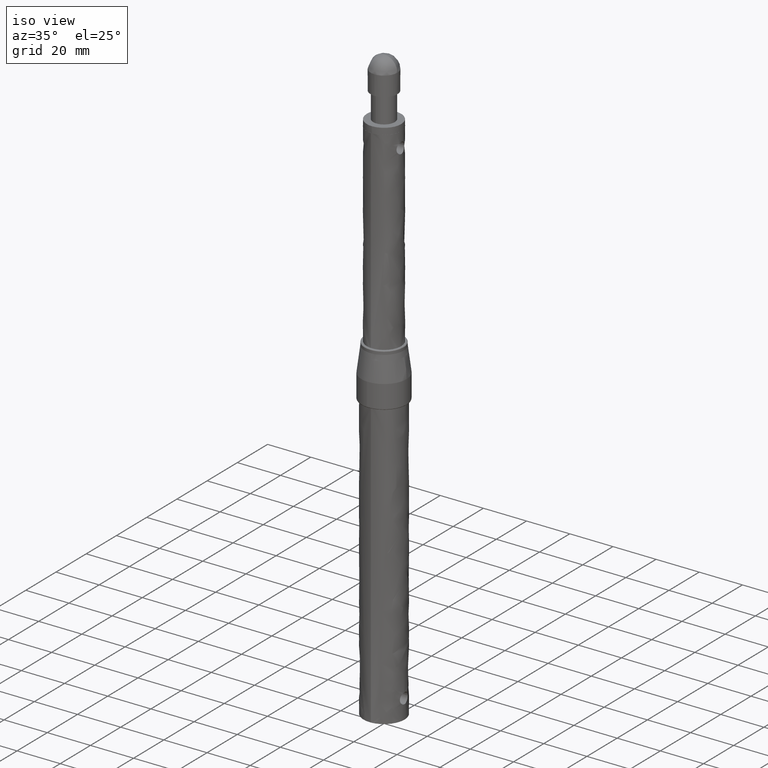
[diagram: clean part render]
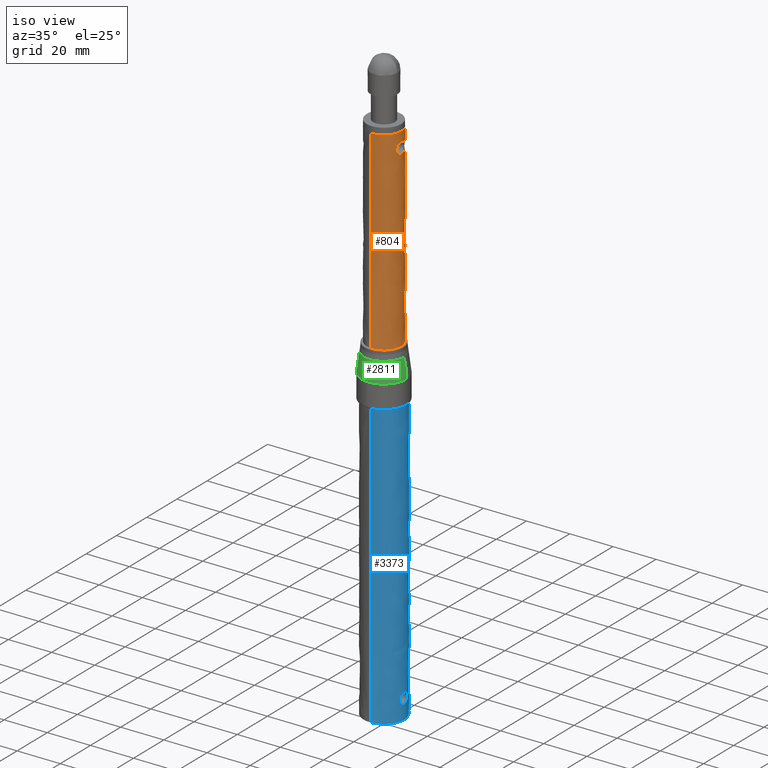
[diagram: same view with three faces highlighted in distinct colors, each labeled with its STEP entity id]
A machine part, iso view with three faces highlighted in distinct colors.
Their STEP definitions:

[orange] entity #804 — the highlighted face is a freeform B-spline surface patch.
#303=CARTESIAN_POINT('',(7.582743249678730,2.549902925123794,83.022252665729440));
#304=VERTEX_POINT('',#303);
#310=CARTESIAN_POINT('',(7.999999934522245,-0.001055043696518,85.549999816570917));
#311=VERTEX_POINT('',#310);
#312=CARTESIAN_POINT('',(7.999999934522245,-0.001055043696518,85.549999816570917));
#313=CARTESIAN_POINT('',(8.000010952038002,0.082517637098927,85.550034359334703));
#314=CARTESIAN_POINT('',(7.998712709724551,0.166042759770597,85.545970462006863));
#315=CARTESIAN_POINT('',(7.994805335043055,0.291258402058047,85.533658913579785));
#316=CARTESIAN_POINT('',(7.993176149045538,0.332984922772112,85.528517258053824));
#317=CARTESIAN_POINT('',(7.989264275730155,0.416413544957251,85.516123653966019));
#318=CARTESIAN_POINT('',(7.986973528548191,0.458227326937259,85.508845904355695));
#319=CARTESIAN_POINT('',(7.974029519826645,0.665092554143251,85.467515511903699));
#320=CARTESIAN_POINT('',(7.958898059747202,0.824598162930261,85.418735996890064));
#321=CARTESIAN_POINT('',(7.930465412959584,1.055330961396417,85.322867417715472));
#322=CARTESIAN_POINT('',(7.920029931422501,1.130810614202328,85.287098989553556));
#323=CARTESIAN_POINT('',(7.897475906497143,1.278859281521783,85.207730365571180));
#324=CARTESIAN_POINT('',(7.885512301647038,1.350407125545224,85.164666643479833));
#325=CARTESIAN_POINT('',(7.848241082284670,1.557153371534126,85.026153438975669));
#326=CARTESIAN_POINT('',(7.821490513945916,1.684900333300609,84.921280572632895));
#327=CARTESIAN_POINT('',(7.780646291718522,1.861503155467159,84.744773054397598));
#328=CARTESIAN_POINT('',(7.766895559549761,1.917886269627127,84.682587730010781));
#329=CARTESIAN_POINT('',(7.740118232673827,2.023245935113066,84.554305340658843));
#330=CARTESIAN_POINT('',(7.713919556764893,2.121851401662508,84.421509869114772));
#331=CARTESIAN_POINT('',(7.689600826030982,2.207196649373006,84.279721566513501));
#332=CARTESIAN_POINT('',(7.672346302740444,2.266168933595619,84.169916405131872));
#333=CARTESIAN_POINT('',(7.666759016370793,2.284985297102654,84.132736278940683));
#334=CARTESIAN_POINT('',(7.655961938518892,2.320904654598196,84.057190080632807));
#335=CARTESIAN_POINT('',(7.650738146777171,2.338052837103082,84.018711793290322));
#336=CARTESIAN_POINT('',(7.625883883182427,2.418772475540874,83.824789330311091));
#337=CARTESIAN_POINT('',(7.610104256425783,2.467287494779346,83.665442168910459));
#338=CARTESIAN_POINT('',(7.593903004731261,2.516532470065900,83.420142198350248));
#339=CARTESIAN_POINT('',(7.589746524700951,2.528996970933513,83.337321981499997));
#340=CARTESIAN_POINT('',(7.585542344708788,2.541567774949011,83.211450031586239));
#341=CARTESIAN_POINT('',(7.584478001023777,2.544739332833061,83.169087058215183));
#342=CARTESIAN_POINT('',(7.583187044986538,2.548583430765024,83.091903810009001));
#343=CARTESIAN_POINT('',(7.582845339994935,2.549599447837199,83.057040079309715));
#344=CARTESIAN_POINT('',(7.582743249678730,2.549902925123794,83.022252665729440));
#345=B_SPLINE_CURVE_WITH_KNOTS('',3,(#312,#313,#314,#315,#316,#317,#318,#319,#320,#321,#322,#323,#324,#325,#326,#327,#328,#329,#330,#331,#332,#333,#334,#335,#336,#337,#338,#339,#340,#341,#342,#343,#344),.UNSPECIFIED.,.F.,.U.,(4,2,2,2,2,2,2,2,2,1,2,2,2,2,2,2,4),(0.500000000000002,0.515625000000002,0.523437500000002,0.531250000000002,0.562500000000002,0.578125000000002,0.593750000000003,0.625000000000003,0.640625000000002,0.656250000000001,0.671875000000000,0.679687500000000,0.687499999999999,0.718750000000000,0.734375000000000,0.742187499999999,0.748649761719194),.UNSPECIFIED.);
#346=EDGE_CURVE('',#311,#304,#345,.T.);
#348=CARTESIAN_POINT('',(7.582743273882599,-2.549903271921090,82.977747331442941));
#349=VERTEX_POINT('',#348);
#350=CARTESIAN_POINT('',(7.582743273882599,-2.549903271921090,82.977747331442941));
#351=CARTESIAN_POINT('',(7.582723207792069,-2.549962426581072,82.984579588867476));
#352=CARTESIAN_POINT('',(7.582712375925069,-2.549994343406730,82.991414103898123));
#353=CARTESIAN_POINT('',(7.582691475064893,-2.550056500924531,83.082022266557274));
#354=CARTESIAN_POINT('',(7.584065721039796,-2.545981614834650,83.166287712179283));
#355=CARTESIAN_POINT('',(7.589634448736089,-2.529332769238430,83.334887755170243));
#356=CARTESIAN_POINT('',(7.593782910547509,-2.516894390202759,83.418011043335142));
#357=CARTESIAN_POINT('',(7.609968451614170,-2.467705494442669,83.664000893987904));
#358=CARTESIAN_POINT('',(7.625747884815830,-2.419196979983068,83.823517197080534));
#359=CARTESIAN_POINT('',(7.650556020018452,-2.338648204558807,84.017342386278614));
#360=CARTESIAN_POINT('',(7.655777571928951,-2.321512440834910,84.055855690859715));
#361=CARTESIAN_POINT('',(7.666574809994707,-2.285602980191551,84.131490312160551));
#362=CARTESIAN_POINT('',(7.672163319773297,-2.266788127990958,84.168717329256282));
#363=CARTESIAN_POINT('',(7.689424990931371,-2.207809015801834,84.278670182937375));
#364=CARTESIAN_POINT('',(7.713762561799149,-2.122424447744433,84.420674098240909));
#365=CARTESIAN_POINT('',(7.739998287433006,-2.023706728003619,84.553712955843807));
#366=CARTESIAN_POINT('',(7.766820974858214,-1.918190414326868,84.682248053994698));
#367=CARTESIAN_POINT('',(7.780579245883319,-1.861779191357675,84.744471042657068));
#368=CARTESIAN_POINT('',(7.821349094829246,-1.685538864319326,84.920693862653508));
#369=CARTESIAN_POINT('',(7.848073017754018,-1.557989784950259,85.025502956393737));
#370=CARTESIAN_POINT('',(7.885338794393769,-1.351416828207113,85.164034643751961));
#371=CARTESIAN_POINT('',(7.897310136922620,-1.279880175792994,85.207137707024344));
#372=CARTESIAN_POINT('',(7.919872316087323,-1.131911317803977,85.286553511653750));
#373=CARTESIAN_POINT('',(7.930307156051634,-1.056510570670662,85.322327056937198));
#374=CARTESIAN_POINT('',(7.958733146586886,-0.826142883484135,85.418193285650801));
#375=CARTESIAN_POINT('',(7.973852998475244,-0.667049811053179,85.466945638462022));
#376=CARTESIAN_POINT('',(7.989407147673704,-0.419756110686170,85.516619529765691));
#377=CARTESIAN_POINT('',(7.993396647904969,-0.335585155914548,85.529219646131082));
#378=CARTESIAN_POINT('',(7.998668639660973,-0.168247951970126,85.545832291050786));
#379=CARTESIAN_POINT('',(7.999988917006217,-0.084627718935503,85.549965273855236));
#380=CARTESIAN_POINT('',(7.999999934522245,-0.001055043696518,85.549999816570917));
#381=B_SPLINE_CURVE_WITH_KNOTS('',3,(#350,#351,#352,#353,#354,#355,#356,#357,#358,#359,#360,#361,#362,#363,#364,#365,#366,#367,#368,#369,#370,#371,#372,#373,#374,#375,#376,#377,#378,#379,#380),.UNSPECIFIED.,.F.,.U.,(4,2,2,2,2,2,2,1,2,2,2,2,2,2,2,4),(0.248724808469254,0.250000000000014,0.265625000000014,0.281250000000014,0.312500000000011,0.320312500000010,0.328125000000010,0.343750000000008,0.359375000000007,0.375000000000006,0.406250000000003,0.421875000000002,0.437500000000002,0.468750000000001,0.484375000000002,0.500000000000002),.UNSPECIFIED.);
#382=EDGE_CURVE('',#349,#311,#381,.T.);
#523=CARTESIAN_POINT('',(8.0,-6.518766E-015,80.449999999999989));
#524=VERTEX_POINT('',#523);
#525=CARTESIAN_POINT('',(8.0,-6.518766E-015,80.449999999999989));
#526=CARTESIAN_POINT('',(7.999999999999549,-0.169655814709794,80.450000000105533));
#527=CARTESIAN_POINT('',(7.994612872236966,-0.336263814360512,80.466760672836628));
#528=CARTESIAN_POINT('',(7.979234934039086,-0.581839238726868,80.515863981417382));
#529=CARTESIAN_POINT('',(7.972890952067285,-0.662969796930014,80.536256086681888));
#530=CARTESIAN_POINT('',(7.961637202545218,-0.783557746179390,80.573005371447920));
#531=CARTESIAN_POINT('',(7.957583427987512,-0.823681288998144,80.586326797888290));
#532=CARTESIAN_POINT('',(7.948991397365964,-0.902840306326149,80.614806391857300));
#533=CARTESIAN_POINT('',(7.944453565355747,-0.941894677355417,80.629962553647204));
#534=CARTESIAN_POINT('',(7.920656266689726,-1.134607900184878,80.710227857634436));
#535=CARTESIAN_POINT('',(7.898076484727111,-1.280664672004357,80.788653277325594));
#536=CARTESIAN_POINT('',(7.866948710448547,-1.453392493039597,80.904319109753231));
#537=CARTESIAN_POINT('',(7.860577932752981,-1.487441332038667,80.928342521439504));
#538=CARTESIAN_POINT('',(7.847584956681000,-1.554534481823843,80.978201562037384));
#539=CARTESIAN_POINT('',(7.840969153530396,-1.587539189708816,81.004015904875700));
#540=CARTESIAN_POINT('',(7.821022809433265,-1.684017637471600,81.083357423303298));
#541=CARTESIAN_POINT('',(7.807526321582865,-1.745314252407056,81.139033506293046));
#542=CARTESIAN_POINT('',(7.767001377330518,-1.920429041354987,81.314257870847484));
#543=CARTESIAN_POINT('',(7.739924231313009,-2.025564466162194,81.441913053356529));
#544=CARTESIAN_POINT('',(7.701532173163213,-2.165348927247842,81.650639126531146));
#545=CARTESIAN_POINT('',(7.689285471460639,-2.208292680116046,81.722177960582215));
#546=CARTESIAN_POINT('',(7.666332780028990,-2.286702694758099,81.868462816659175));
#547=CARTESIAN_POINT('',(7.644881511620173,-2.357774975397494,82.018165909157034));
#548=CARTESIAN_POINT('',(7.627067651580122,-2.414228194945686,82.174764365418994));
#549=CARTESIAN_POINT('',(7.611402553729099,-2.463170680297032,82.334942313491254));
#550=CARTESIAN_POINT('',(7.604623550527819,-2.483948551133182,82.417280618906204));
#551=CARTESIAN_POINT('',(7.588788883405885,-2.532072391095582,82.657794982346786));
#552=CARTESIAN_POINT('',(7.583214949867667,-2.548512798114384,82.817147450541967));
#553=CARTESIAN_POINT('',(7.582743273882599,-2.549903271921090,82.977747331442941));
#554=B_SPLINE_CURVE_WITH_KNOTS('',3,(#525,#526,#527,#528,#529,#530,#531,#532,#533,#534,#535,#536,#537,#538,#539,#540,#541,#542,#543,#544,#545,#546,#547,#548,#549,#550,#551,#552,#553),.UNSPECIFIED.,.F.,.U.,(4,2,2,2,2,2,2,2,2,2,2,1,2,2,4),(0.0,0.031250000000002,0.046875000000004,0.054687500000004,0.062500000000004,0.093750000000004,0.101562500000004,0.109375000000003,0.125000000000004,0.156250000000006,0.171875000000007,0.187500000000009,0.203125000000010,0.218750000000011,0.248724808469255),.UNSPECIFIED.);
#555=EDGE_CURVE('',#524,#349,#554,.T.);
#557=CARTESIAN_POINT('',(7.582743249678730,2.549902925123794,83.022252665729440));
#558=CARTESIAN_POINT('',(7.582721918717687,2.549966334353383,83.014984111847838));
#559=CARTESIAN_POINT('',(7.582711048562953,2.549998636386893,83.007718889726291));
#560=CARTESIAN_POINT('',(7.582700481814301,2.550030058521250,82.832387080565795));
#561=CARTESIAN_POINT('',(7.588282928084944,2.533605054491194,82.666081487056843));
#562=CARTESIAN_POINT('',(7.601776382730431,2.492603109758754,82.460380310508626));
#563=CARTESIAN_POINT('',(7.604800538788561,2.483369810316716,82.419350010291879));
#564=CARTESIAN_POINT('',(7.611486498969748,2.462801276679567,82.337512339882011));
#565=CARTESIAN_POINT('',(7.615145473698725,2.451473971990929,82.296765014267606));
#566=CARTESIAN_POINT('',(7.626906134356103,2.414738902926445,82.176232666477929));
#567=CARTESIAN_POINT('',(7.644746886251300,2.358213830851277,82.019167568794998));
#568=CARTESIAN_POINT('',(7.666235765932758,2.287029304485202,81.869110656449465));
#569=CARTESIAN_POINT('',(7.683479069090573,2.228131013086694,81.759169400142255));
#570=CARTESIAN_POINT('',(7.689414612367558,2.207578241109534,81.722956638927243));
#571=CARTESIAN_POINT('',(7.701621008203746,2.164609115019497,81.651404872031918));
#572=CARTESIAN_POINT('',(7.707907913042526,2.142134014929780,81.615979853633945));
#573=CARTESIAN_POINT('',(7.739872173534983,2.025759159440670,81.442181277922487));
#574=CARTESIAN_POINT('',(7.766947435679320,1.920652980415137,81.314499516110374));
#575=CARTESIAN_POINT('',(7.807505797203414,1.745407771095337,81.139118051360683));
#576=CARTESIAN_POINT('',(7.821019270207474,1.684038620733463,81.083369648531459));
#577=CARTESIAN_POINT('',(7.840998648002236,1.587394817676705,81.003899509538414));
#578=CARTESIAN_POINT('',(7.847623786040489,1.554337546221947,80.978051293520792));
#579=CARTESIAN_POINT('',(7.860597351816876,1.487337745786879,80.928269271410073));
#580=CARTESIAN_POINT('',(7.866958965507964,1.453335953019125,80.904280938999293));
#581=CARTESIAN_POINT('',(7.898043893271029,1.280844693097629,80.788774634309533));
#582=CARTESIAN_POINT('',(7.920599013997271,1.134981254827181,80.710426835441950));
#583=CARTESIAN_POINT('',(7.944380519339036,0.942508676540672,80.630207473279739));
#584=CARTESIAN_POINT('',(7.948915938845368,0.903502392147813,80.615057900527049));
#585=CARTESIAN_POINT('',(7.957504694231398,0.824439335649489,80.586586406414028));
#586=CARTESIAN_POINT('',(7.961565789985818,0.784286199259168,80.573239507232600));
#587=CARTESIAN_POINT('',(7.972846535556874,0.663518516953828,80.536399276881724));
#588=CARTESIAN_POINT('',(7.979203538829359,0.582282471651748,80.515964647316736));
#589=CARTESIAN_POINT('',(7.994609368455766,0.336435760148673,80.466771026726263));
#590=CARTESIAN_POINT('',(7.999999999999893,0.169655826204342,80.449999999993906));
#591=CARTESIAN_POINT('',(8.0,-6.518766E-015,80.449999999999989));
#592=B_SPLINE_CURVE_WITH_KNOTS('',3,(#557,#558,#559,#560,#561,#562,#563,#564,#565,#566,#567,#568,#569,#570,#571,#572,#573,#574,#575,#576,#577,#578,#579,#580,#581,#582,#583,#584,#585,#586,#587,#588,#589,#590,#591),.UNSPECIFIED.,.F.,.U.,(4,2,2,2,2,1,2,2,2,2,2,2,2,2,2,2,2,4),(0.748649761719194,0.749999999999998,0.781249999999991,0.789062499999991,0.796874999999990,0.812499999999989,0.828124999999988,0.835937499999988,0.843749999999988,0.874999999999986,0.890624999999985,0.898437499999985,0.906249999999986,0.937499999999990,0.945312499999992,0.953124999999993,0.968749999999995,1.0),.UNSPECIFIED.);
#593=EDGE_CURVE('',#304,#524,#592,.T.);
#604=CARTESIAN_POINT('',(-0.488389013830933,-7.985078344710761,-3.552714E-015));
#605=VERTEX_POINT('',#604);
#606=CARTESIAN_POINT('',(8.0,0.0,0.0));
#607=VERTEX_POINT('',#606);
#608=CARTESIAN_POINT('',(-0.488389013830933,-7.985078344710761,-3.552714E-015));
#609=CARTESIAN_POINT('',(-0.244422456142687,-8.0,0.0));
#610=CARTESIAN_POINT('',(0.0,-8.0,0.0));
#611=CARTESIAN_POINT('',(8.0,-8.0,0.0));
#612=CARTESIAN_POINT('',(8.0,0.0,0.0));
#620=(BOUNDED_CURVE()B_SPLINE_CURVE(2,(#608,#609,#610,#611,#612),.UNSPECIFIED.,.F.,.U.)B_SPLINE_CURVE_WITH_KNOTS((3,2,3),(0.739332947168807,0.750000000000000,1.0),.UNSPECIFIED.)CURVE()GEOMETRIC_REPRESENTATION_ITEM()RATIONAL_B_SPLINE_CURVE((0.976072009368551,0.987502770244076,1.0,0.707106781186548,1.0))REPRESENTATION_ITEM(''));
#621=EDGE_CURVE('',#605,#607,#620,.T.);
#638=CARTESIAN_POINT('',(0.488389013830932,7.985078344710761,-3.552714E-015));
#639=VERTEX_POINT('',#638);
#655=CARTESIAN_POINT('',(8.0,0.0,0.0));
#656=CARTESIAN_POINT('',(8.000000000000002,7.525647876599388,0.0));
#657=CARTESIAN_POINT('',(0.488389013830933,7.985078344710793,0.0));
#665=(BOUNDED_CURVE()B_SPLINE_CURVE(2,(#655,#656,#657),.UNSPECIFIED.,.F.,.U.)B_SPLINE_CURVE_WITH_KNOTS((3,3),(0.0,0.239332947168808),.UNSPECIFIED.)CURVE()GEOMETRIC_REPRESENTATION_ITEM()RATIONAL_B_SPLINE_CURVE((1.0,0.719604010942472,0.976072009368551))REPRESENTATION_ITEM(''));
#666=EDGE_CURVE('',#607,#639,#665,.T.);
#690=CARTESIAN_POINT('',(-0.488389013830933,-7.985078344710761,89.989999999999995));
#691=VERTEX_POINT('',#690);
#692=CARTESIAN_POINT('',(-0.488389013830933,-7.985078344710761,89.989999999999995));
#693=CARTESIAN_POINT('',(-0.488389013830933,-7.985078344710761,-3.552714E-015));
#694=QUASI_UNIFORM_CURVE('',1,(#692,#693),.UNSPECIFIED.,.F.,.U.);
#695=EDGE_CURVE('',#691,#605,#694,.T.);
#712=CARTESIAN_POINT('',(0.488389013830932,7.985078344710761,89.989999999999995));
#713=VERTEX_POINT('',#712);
#729=CARTESIAN_POINT('',(0.488389013830932,7.985078344710761,89.989999999999995));
#730=CARTESIAN_POINT('',(0.488389013830932,7.985078344710761,-3.552714E-015));
#731=QUASI_UNIFORM_CURVE('',1,(#729,#730),.UNSPECIFIED.,.F.,.U.);
#732=EDGE_CURVE('',#713,#639,#731,.T.);
#744=CARTESIAN_POINT('',(0.488388316278855,7.985078387374934,92.239750000000015));
#745=CARTESIAN_POINT('',(8.473466703653788,7.496690071096078,92.239750000000015));
#746=CARTESIAN_POINT('',(7.985078387374934,-0.488388316278855,92.239750000000015));
#747=CARTESIAN_POINT('',(7.496690071096078,-8.473466703653788,92.239750000000015));
#748=CARTESIAN_POINT('',(-0.488388316278855,-7.985078387374934,92.239750000000015));
#749=CARTESIAN_POINT('',(0.488388316278855,7.985078387374934,-2.305993749999999));
#750=CARTESIAN_POINT('',(8.473466703653788,7.496690071096078,-2.305993749999999));
#751=CARTESIAN_POINT('',(7.985078387374934,-0.488388316278855,-2.305993749999999));
#752=CARTESIAN_POINT('',(7.496690071096078,-8.473466703653788,-2.305993749999999));
#753=CARTESIAN_POINT('',(-0.488388316278855,-7.985078387374934,-2.305993749999999));
#761=(BOUNDED_SURFACE()B_SPLINE_SURFACE(2,1,((#744,#749),(#745,#750),(#746,#751),(#747,#752),(#748,#753)),.UNSPECIFIED.,.F.,.F.,.U.)B_SPLINE_SURFACE_WITH_KNOTS((3,2,3),(2,2),(0.0,13.254833995939039,26.509667991878072),(0.0,94.545743750000014),.UNSPECIFIED.)GEOMETRIC_REPRESENTATION_ITEM()RATIONAL_B_SPLINE_SURFACE(((1.0,1.0),(0.707106781186548,0.707106781186548),(1.0,1.0),(0.707106781186548,0.707106781186548),(1.0,1.0)))REPRESENTATION_ITEM('')SURFACE());
#762=ORIENTED_EDGE('',*,*,#621,.T.);
#763=ORIENTED_EDGE('',*,*,#666,.T.);
#764=ORIENTED_EDGE('',*,*,#732,.F.);
#765=CARTESIAN_POINT('',(8.0,0.0,89.989999999999995));
#766=VERTEX_POINT('',#765);
#767=CARTESIAN_POINT('',(8.0,0.0,89.989999999999995));
#768=CARTESIAN_POINT('',(8.000000000000002,7.525647876599388,89.990000000000009));
#769=CARTESIAN_POINT('',(0.488389013830933,7.985078344710793,89.989999999999995));
#777=(BOUNDED_CURVE()B_SPLINE_CURVE(2,(#767,#768,#769),.UNSPECIFIED.,.F.,.U.)B_SPLINE_CURVE_WITH_KNOTS((3,3),(0.0,0.239332947168808),.UNSPECIFIED.)CURVE()GEOMETRIC_REPRESENTATION_ITEM()RATIONAL_B_SPLINE_CURVE((1.0,0.719604010942472,0.976072009368551))REPRESENTATION_ITEM(''));
#778=EDGE_CURVE('',#766,#713,#777,.T.);
#779=ORIENTED_EDGE('',*,*,#778,.F.);
#780=CARTESIAN_POINT('',(-0.488389013830936,-7.985078344710793,89.989999999999995));
#781=CARTESIAN_POINT('',(-0.244422456142687,-8.0,89.989999999999995));
#782=CARTESIAN_POINT('',(0.0,-8.0,89.989999999999995));
#783=CARTESIAN_POINT('',(8.0,-8.0,89.990000000000009));
#784=CARTESIAN_POINT('',(8.0,0.0,89.989999999999995));
#792=(BOUNDED_CURVE()B_SPLINE_CURVE(2,(#780,#781,#782,#783,#784),.UNSPECIFIED.,.F.,.U.)B_SPLINE_CURVE_WITH_KNOTS((3,2,3),(0.739332947168807,0.750000000000000,1.0),.UNSPECIFIED.)CURVE()GEOMETRIC_REPRESENTATION_ITEM()RATIONAL_B_SPLINE_CURVE((0.976072009368551,0.987502770244076,1.0,0.707106781186548,1.0))REPRESENTATION_ITEM(''));
#793=EDGE_CURVE('',#691,#766,#792,.T.);
#794=ORIENTED_EDGE('',*,*,#793,.F.);
#795=ORIENTED_EDGE('',*,*,#695,.T.);
#796=EDGE_LOOP('',(#762,#763,#764,#779,#794,#795));
#797=FACE_OUTER_BOUND('',#796,.T.);
#798=ORIENTED_EDGE('',*,*,#555,.T.);
#799=ORIENTED_EDGE('',*,*,#382,.T.);
#800=ORIENTED_EDGE('',*,*,#346,.T.);
#801=ORIENTED_EDGE('',*,*,#593,.T.);
#802=EDGE_LOOP('',(#798,#799,#800,#801));
#803=FACE_BOUND('',#802,.T.);
#804=ADVANCED_FACE('',(#797,#803),#761,.T.);

[blue] entity #3373 — the highlighted face is a freeform B-spline surface patch.
#2819=CARTESIAN_POINT('',(-0.579961125995799,9.482280584982373,-156.0));
#2820=VERTEX_POINT('',#2819);
#2834=CARTESIAN_POINT('',(9.500000000000000,0.0,-156.0));
#2835=VERTEX_POINT('',#2834);
#2836=CARTESIAN_POINT('',(-0.579961125995799,9.482280584982377,-155.999999999999970));
#2837=CARTESIAN_POINT('',(-0.290251251544505,9.500000000000000,-155.999999999999970));
#2838=CARTESIAN_POINT('',(0.0,9.500000000000000,-156.0));
#2839=CARTESIAN_POINT('',(9.500000000000000,9.500000000000000,-155.999999999999970));
#2840=CARTESIAN_POINT('',(9.500000000000000,0.0,-156.0));
#2848=(BOUNDED_CURVE()B_SPLINE_CURVE(2,(#2836,#2837,#2838,#2839,#2840),.UNSPECIFIED.,.F.,.U.)B_SPLINE_CURVE_WITH_KNOTS((3,2,3),(0.239332962234423,0.250000000000000,0.500000000000000),.UNSPECIFIED.)CURVE()GEOMETRIC_REPRESENTATION_ITEM()RATIONAL_B_SPLINE_CURVE((0.976072041657030,0.987502787894542,1.0,0.707106781186548,1.0))REPRESENTATION_ITEM(''));
#2849=EDGE_CURVE('',#2820,#2835,#2848,.T.);
#2851=CARTESIAN_POINT('',(0.579961125995800,-9.482280584982373,-156.0));
#2852=VERTEX_POINT('',#2851);
#2853=CARTESIAN_POINT('',(9.500000000000000,0.0,-156.0));
#2854=CARTESIAN_POINT('',(9.500000000000000,-8.936707635212573,-156.0));
#2855=CARTESIAN_POINT('',(0.579961125995796,-9.482280584982377,-156.000000000000030));
#2863=(BOUNDED_CURVE()B_SPLINE_CURVE(2,(#2853,#2854,#2855),.UNSPECIFIED.,.F.,.U.)B_SPLINE_CURVE_WITH_KNOTS((3,3),(0.500000000000000,0.739332962234423),.UNSPECIFIED.)CURVE()GEOMETRIC_REPRESENTATION_ITEM()RATIONAL_B_SPLINE_CURVE((1.0,0.719603993292006,0.976072041657031))REPRESENTATION_ITEM(''));
#2864=EDGE_CURVE('',#2835,#2852,#2863,.T.);
#2948=CARTESIAN_POINT('',(9.151393437398420,2.549902345382639,-146.977747339352700));
#2949=VERTEX_POINT('',#2948);
#2955=CARTESIAN_POINT('',(9.499999945637139,-0.001087199986066,-144.450000150858610));
#2956=VERTEX_POINT('',#2955);
#2957=CARTESIAN_POINT('',(9.499999945637139,-0.001087199986066,-144.450000150858610));
#2958=CARTESIAN_POINT('',(9.500009486652004,0.082351017751329,-144.449964657486790));
#2959=CARTESIAN_POINT('',(9.498919955385079,0.165676908663655,-144.454014500551610));
#2960=CARTESIAN_POINT('',(9.494558277819339,0.332102823687987,-144.470336240447690));
#2961=CARTESIAN_POINT('',(9.491278962837018,0.415336969271619,-144.482634367138590));
#2962=CARTESIAN_POINT('',(9.478229009753237,0.663851924545622,-144.532138846574500));
#2963=CARTESIAN_POINT('',(9.465514150902560,0.823348775839548,-144.580853936237190));
#2964=CARTESIAN_POINT('',(9.441685017997555,1.053826177068488,-144.676453493472910));
#2965=CARTESIAN_POINT('',(9.432947441540028,1.129179779381897,-144.712103511311200));
#2966=CARTESIAN_POINT('',(9.418803797265580,1.239968334512961,-144.771383118688390));
#2967=CARTESIAN_POINT('',(9.413905036750109,1.276599152764448,-144.792162338168510));
#2968=CARTESIAN_POINT('',(9.403892807165954,1.348374417170349,-144.835250816128310));
#2969=CARTESIAN_POINT('',(9.398770752078537,1.383593464894615,-144.857594944033790));
#2970=CARTESIAN_POINT('',(9.372678997282213,1.556419228672258,-144.973244994269290));
#2971=CARTESIAN_POINT('',(9.350264548664077,1.684314610389123,-145.078219412700010));
#2972=CARTESIAN_POINT('',(9.321849817364047,1.831396914414408,-145.225115533473090));
#2973=CARTESIAN_POINT('',(9.316147228409879,1.860167975707402,-145.255286163563910));
#2974=CARTESIAN_POINT('',(9.304742896390762,1.916398652247650,-145.317244058798990));
#2975=CARTESIAN_POINT('',(9.299049183723666,1.943815244188678,-145.348993553962090));
#2976=CARTESIAN_POINT('',(9.282212993519833,2.023228142600289,-145.445649883852810));
#2977=CARTESIAN_POINT('',(9.271256124171391,2.072690216705906,-145.512279886639190));
#2978=CARTESIAN_POINT('',(9.239635929019951,2.210896488666008,-145.718650658194800));
#2979=CARTESIAN_POINT('',(9.220213383414238,2.289566994191271,-145.864805032932400));
#2980=CARTESIAN_POINT('',(9.195416944985301,2.386508291632656,-146.097696840491890));
#2981=CARTESIAN_POINT('',(9.187973539310651,2.414907334094117,-146.176786177620190));
#2982=CARTESIAN_POINT('',(9.175053747687951,2.463538933152060,-146.336347598333990));
#2983=CARTESIAN_POINT('',(9.164050271982234,2.504199465745936,-146.497757945537590));
#2984=CARTESIAN_POINT('',(9.157193504246139,2.529008657128781,-146.662864675838310));
#2985=CARTESIAN_POINT('',(9.152760166732586,2.545004338325996,-146.822886181118800));
#2986=CARTESIAN_POINT('',(9.151583487916369,2.549221521149421,-146.900583271969310));
#2987=CARTESIAN_POINT('',(9.151393437398420,2.549902345382639,-146.977747339352700));
#2988=B_SPLINE_CURVE_WITH_KNOTS('',3,(#2957,#2958,#2959,#2960,#2961,#2962,#2963,#2964,#2965,#2966,#2967,#2968,#2969,#2970,#2971,#2972,#2973,#2974,#2975,#2976,#2977,#2978,#2979,#2980,#2981,#2982,#2983,#2984,#2985,#2986,#2987),.UNSPECIFIED.,.F.,.U.,(4,2,2,2,2,2,2,2,2,2,2,2,2,1,2,4),(0.500000000000027,0.515625000000024,0.531250000000022,0.562500000000017,0.578125000000014,0.585937500000014,0.593750000000014,0.625000000000017,0.632812500000015,0.640625000000013,0.656250000000009,0.687500000000001,0.703125000000000,0.718749999999998,0.734374999999996,0.748693175155509),.UNSPECIFIED.);
#2989=EDGE_CURVE('',#2956,#2949,#2988,.T.);
#2991=CARTESIAN_POINT('',(9.151393088267128,-2.549903274579038,-147.022252668641810));
#2992=VERTEX_POINT('',#2991);
#2993=CARTESIAN_POINT('',(9.151393088267128,-2.549903274579038,-147.022252668641810));
#2994=CARTESIAN_POINT('',(9.151376381454865,-2.549962726785563,-147.015385941811700));
#2995=CARTESIAN_POINT('',(9.151367402462650,-2.549994662569613,-147.008517189667910));
#2996=CARTESIAN_POINT('',(9.151351129328250,-2.550053069649667,-146.918065332379000));
#2997=CARTESIAN_POINT('',(9.152481185949931,-2.546008722202593,-146.834182710090890));
#2998=CARTESIAN_POINT('',(9.157079830067140,-2.529419170072586,-146.665792684631300));
#2999=CARTESIAN_POINT('',(9.160509936246683,-2.517010797949111,-146.582707609237500));
#3000=CARTESIAN_POINT('',(9.173896000493009,-2.467950565013441,-146.336953688954400));
#3001=CARTESIAN_POINT('',(9.186953253411405,-2.419563274114582,-146.177614877068890));
#3002=CARTESIAN_POINT('',(9.207505624353116,-2.339254953804559,-145.984056336259900));
#3003=CARTESIAN_POINT('',(9.211840271068299,-2.322141407227057,-145.945524759762610));
#3004=CARTESIAN_POINT('',(9.220826567567904,-2.286197577343895,-145.869708249182910));
#3005=CARTESIAN_POINT('',(9.225479279499028,-2.267364339910307,-145.832398284571010));
#3006=CARTESIAN_POINT('',(9.239854776704700,-2.208330439462116,-145.722220834375090));
#3007=CARTESIAN_POINT('',(9.260133773597415,-2.122873547770859,-145.579982014209690));
#3008=CARTESIAN_POINT('',(9.282014574786304,-2.024132294185060,-145.446841312595690));
#3009=CARTESIAN_POINT('',(9.298797292000048,-1.945017961613303,-145.350414319411190));
#3010=CARTESIAN_POINT('',(9.304453559847916,-1.917801863515094,-145.318844471007400));
#3011=CARTESIAN_POINT('',(9.315851480930586,-1.861647462573297,-145.256865845665910));
#3012=CARTESIAN_POINT('',(9.321591277353910,-1.832713099330416,-145.226472132918300));
#3013=CARTESIAN_POINT('',(9.350093912212557,-1.685281658613520,-145.079023547420600));
#3014=CARTESIAN_POINT('',(9.372508318590853,-1.557401618872321,-144.974042698341090));
#3015=CARTESIAN_POINT('',(9.403739280581814,-1.350755461916874,-144.835551995984190));
#3016=CARTESIAN_POINT('',(9.413752509620620,-1.279384333684557,-144.792575887198210));
#3017=CARTESIAN_POINT('',(9.427945584424489,-1.168431441778907,-144.733057307466200));
#3018=CARTESIAN_POINT('',(9.432527124237842,-1.130875459558963,-144.714093106862210));
#3019=CARTESIAN_POINT('',(9.441282319486589,-1.055289273359132,-144.678230370903090));
#3020=CARTESIAN_POINT('',(9.445468173869255,-1.017165262114379,-144.661280565703210));
#3021=CARTESIAN_POINT('',(9.465380948210152,-0.824908098829797,-144.581370317654400));
#3022=CARTESIAN_POINT('',(9.478061365761228,-0.665909809354495,-144.532783207488390));
#3023=CARTESIAN_POINT('',(9.491094500511954,-0.419399517045535,-144.483330041399510));
#3024=CARTESIAN_POINT('',(9.494446123849011,-0.335406608385609,-144.470756798229390));
#3025=CARTESIAN_POINT('',(9.498881791325022,-0.168075932246324,-144.454156473775700));
#3026=CARTESIAN_POINT('',(9.499990404621977,-0.084525402636684,-144.450035644098190));
#3027=CARTESIAN_POINT('',(9.499999945637139,-0.001087199986066,-144.450000150858610));
#3028=B_SPLINE_CURVE_WITH_KNOTS('',3,(#2993,#2994,#2995,#2996,#2997,#2998,#2999,#3000,#3001,#3002,#3003,#3004,#3005,#3006,#3007,#3008,#3009,#3010,#3011,#3012,#3013,#3014,#3015,#3016,#3017,#3018,#3019,#3020,#3021,#3022,#3023,#3024,#3025,#3026,#3027),.UNSPECIFIED.,.F.,.U.,(4,2,2,2,2,2,2,1,2,2,2,2,2,2,2,2,2,4),(0.248715548030896,0.250000000000040,0.265625000000041,0.281250000000041,0.312500000000042,0.320312500000040,0.328125000000038,0.343750000000039,0.359375000000039,0.367187500000039,0.375000000000039,0.406250000000040,0.421875000000041,0.429687500000040,0.437500000000039,0.468750000000033,0.484375000000030,0.500000000000027),.UNSPECIFIED.);
#3029=EDGE_CURVE('',#2992,#2956,#3028,.T.);
#3166=CARTESIAN_POINT('',(9.500000000000002,-2.110128E-014,-149.550000000000010));
#3167=VERTEX_POINT('',#3166);
#3168=CARTESIAN_POINT('',(9.500000000000002,-2.110128E-014,-149.550000000000010));
#3169=CARTESIAN_POINT('',(9.499999999999732,-0.169298085399880,-149.549999999893490));
#3170=CARTESIAN_POINT('',(9.495481155706582,-0.335616194133108,-149.533308714412100));
#3171=CARTESIAN_POINT('',(9.482580050825042,-0.580840495575878,-149.484365529589300));
#3172=CARTESIAN_POINT('',(9.477257968509949,-0.661868017089285,-149.464036481686410));
#3173=CARTESIAN_POINT('',(9.467819001405353,-0.782320420179875,-149.427392826995910));
#3174=CARTESIAN_POINT('',(9.464419573736217,-0.822400226015963,-149.414109986259690));
#3175=CARTESIAN_POINT('',(9.457205985159908,-0.901573584608679,-149.385672694125190));
#3176=CARTESIAN_POINT('',(9.453396213063741,-0.940639428700695,-149.370536042503200));
#3177=CARTESIAN_POINT('',(9.433418517510511,-1.133427209553355,-149.290358849147990));
#3178=CARTESIAN_POINT('',(9.414467179469076,-1.279597931185225,-149.211971323452100));
#3179=CARTESIAN_POINT('',(9.388372325732599,-1.452476293698660,-149.096316466034410));
#3180=CARTESIAN_POINT('',(9.383033027952171,-1.486555684112433,-149.072293582431710));
#3181=CARTESIAN_POINT('',(9.372147219804587,-1.553709448377281,-149.022433039105210));
#3182=CARTESIAN_POINT('',(9.366594236396917,-1.586815446653339,-148.996561808924500));
#3183=CARTESIAN_POINT('',(9.349859148155145,-1.683573203022754,-148.917042507711810));
#3184=CARTESIAN_POINT('',(9.338545590317811,-1.745025929270544,-148.861244411489710));
#3185=CARTESIAN_POINT('',(9.304612386987499,-1.920517371816801,-148.685674866722510));
#3186=CARTESIAN_POINT('',(9.281990949721415,-2.025779965738684,-148.557813390119800));
#3187=CARTESIAN_POINT('',(9.255333479082324,-2.142282074901182,-148.383792149916390));
#3188=CARTESIAN_POINT('',(9.250092631934985,-2.164780134125389,-148.348321032385710));
#3189=CARTESIAN_POINT('',(9.239927112760741,-2.207766659130054,-148.276718041013910));
#3190=CARTESIAN_POINT('',(9.234988268288261,-2.228317391670460,-148.240495053226400));
#3191=CARTESIAN_POINT('',(9.220651817287633,-2.287183921791944,-148.130574455265190));
#3192=CARTESIAN_POINT('',(9.202817002889455,-2.358257646018384,-147.980681739715890));
#3193=CARTESIAN_POINT('',(9.188052486010321,-2.414607179054311,-147.824115788767100));
#3194=CARTESIAN_POINT('',(9.175085010303885,-2.463422672637601,-147.664110905337310));
#3195=CARTESIAN_POINT('',(9.169478912061177,-2.484138847227527,-147.581901378277590));
#3196=CARTESIAN_POINT('',(9.156378575053212,-2.532153179750665,-147.341544179955010));
#3197=CARTESIAN_POINT('',(9.151782848879449,-2.548516310843833,-147.182449575837690));
#3198=CARTESIAN_POINT('',(9.151393088267128,-2.549903274579038,-147.022252668641810));
#3199=B_SPLINE_CURVE_WITH_KNOTS('',3,(#3168,#3169,#3170,#3171,#3172,#3173,#3174,#3175,#3176,#3177,#3178,#3179,#3180,#3181,#3182,#3183,#3184,#3185,#3186,#3187,#3188,#3189,#3190,#3191,#3192,#3193,#3194,#3195,#3196,#3197,#3198),.UNSPECIFIED.,.F.,.U.,(4,2,2,2,2,2,2,2,2,2,2,2,1,2,2,4),(0.0,0.031249999999996,0.046874999999994,0.054687499999993,0.062499999999991,0.093749999999991,0.101562499999993,0.109374999999995,0.124999999999998,0.156250000000006,0.164062500000011,0.171875000000017,0.187500000000022,0.203125000000028,0.218750000000034,0.248715548030896),.UNSPECIFIED.);
#3200=EDGE_CURVE('',#3167,#2992,#3199,.T.);
#3202=CARTESIAN_POINT('',(9.151393437398420,2.549902345382639,-146.977747339352700));
#3203=CARTESIAN_POINT('',(9.151376091421334,2.549964482920226,-146.984790130731910));
#3204=CARTESIAN_POINT('',(9.151366964330890,2.549997161613551,-146.991828481878200));
#3205=CARTESIAN_POINT('',(9.151345160031140,2.550075393262290,-147.167031337980800));
#3206=CARTESIAN_POINT('',(9.155961647847894,2.533675108874410,-147.333070466682500));
#3207=CARTESIAN_POINT('',(9.167076110036293,2.492947919930312,-147.538014444793390));
#3208=CARTESIAN_POINT('',(9.169566060546295,2.483781854586038,-147.578871882606590));
#3209=CARTESIAN_POINT('',(9.175068006806972,2.463380002313086,-147.660321017922710));
#3210=CARTESIAN_POINT('',(9.178088505247361,2.452112196342556,-147.701015172420510));
#3211=CARTESIAN_POINT('',(9.187850677127512,2.415376627168273,-147.821921364013800));
#3212=CARTESIAN_POINT('',(9.195257893445794,2.387115142386977,-147.900616061253690));
#3213=CARTESIAN_POINT('',(9.219749001038547,2.291411688529999,-148.131210817158600));
#3214=CARTESIAN_POINT('',(9.239103435375011,2.213159159112676,-148.277673274887600));
#3215=CARTESIAN_POINT('',(9.265721154287546,2.096898174761948,-148.451644169545200));
#3216=CARTESIAN_POINT('',(9.271170999082415,2.072688867058844,-148.486003415097400));
#3217=CARTESIAN_POINT('',(9.282157432811427,2.022919706909094,-148.553074712592090));
#3218=CARTESIAN_POINT('',(9.287707864089033,1.997300448109598,-148.585880170451500));
#3219=CARTESIAN_POINT('',(9.304468554372049,1.918271807135890,-148.682150198867700));
#3220=CARTESIAN_POINT('',(9.327107274795814,1.807122179453302,-148.804797400846210));
#3221=CARTESIAN_POINT('',(9.349690990909409,1.684497214605926,-148.916218377477290));
#3222=CARTESIAN_POINT('',(9.371932597337562,1.555998630448084,-149.021952485634300));
#3223=CARTESIAN_POINT('',(9.382937042352086,1.488425857917668,-149.072210204457600));
#3224=CARTESIAN_POINT('',(9.414365167147231,1.280391622480609,-149.211551918319000));
#3225=CARTESIAN_POINT('',(9.433305395390311,1.134276797388239,-149.289888633741100));
#3226=CARTESIAN_POINT('',(9.457211682181146,0.903939132730717,-149.385856788729600));
#3227=CARTESIAN_POINT('',(9.464430348993242,0.825286002538092,-149.414230211114390));
#3228=CARTESIAN_POINT('',(9.477107328278507,0.664059817575633,-149.463458746137090));
#3229=CARTESIAN_POINT('',(9.482488820266749,0.582380497808820,-149.484017988014610));
#3230=CARTESIAN_POINT('',(9.495478904674071,0.336043379647396,-149.533303020326710));
#3231=CARTESIAN_POINT('',(9.499999999999673,0.169298115907358,-149.549999999839290));
#3232=CARTESIAN_POINT('',(9.500000000000002,-2.110128E-014,-149.550000000000010));
#3233=B_SPLINE_CURVE_WITH_KNOTS('',3,(#3202,#3203,#3204,#3205,#3206,#3207,#3208,#3209,#3210,#3211,#3212,#3213,#3214,#3215,#3216,#3217,#3218,#3219,#3220,#3221,#3222,#3223,#3224,#3225,#3226,#3227,#3228,#3229,#3230,#3231,#3232),.UNSPECIFIED.,.F.,.U.,(4,2,2,2,2,2,2,2,2,1,2,2,2,2,2,4),(0.748693175155510,0.749999999999995,0.781249999999991,0.789062499999989,0.796874999999987,0.812499999999983,0.843749999999979,0.851562499999981,0.859374999999982,0.874999999999984,0.890624999999987,0.906249999999989,0.937499999999992,0.953124999999994,0.968749999999996,1.0),.UNSPECIFIED.);
#3234=EDGE_CURVE('',#2949,#3167,#3233,.T.);
#3260=CARTESIAN_POINT('',(0.579961125995799,-9.482280584982373,-24.0));
#3261=VERTEX_POINT('',#3260);
#3262=CARTESIAN_POINT('',(0.579961125995800,-9.482280584982373,-156.0));
#3263=CARTESIAN_POINT('',(0.579961125995799,-9.482280584982373,-24.0));
#3264=QUASI_UNIFORM_CURVE('',1,(#3262,#3263),.UNSPECIFIED.,.F.,.U.);
#3265=EDGE_CURVE('',#2852,#3261,#3264,.T.);
#3284=CARTESIAN_POINT('',(-0.579961125995800,9.482280584982373,-24.0));
#3285=VERTEX_POINT('',#3284);
#3299=CARTESIAN_POINT('',(-0.579961125995799,9.482280584982373,-156.0));
#3300=CARTESIAN_POINT('',(-0.579961125995800,9.482280584982373,-24.0));
#3301=QUASI_UNIFORM_CURVE('',1,(#3299,#3300),.UNSPECIFIED.,.F.,.U.);
#3302=EDGE_CURVE('',#2820,#3285,#3301,.T.);
#3313=CARTESIAN_POINT('',(0.579961125581140,-9.482280585007734,-159.300000000000010));
#3314=CARTESIAN_POINT('',(10.062241710588875,-8.902319459426593,-159.300000000000100));
#3315=CARTESIAN_POINT('',(9.482280585007734,0.579961125581140,-159.300000000000010));
#3316=CARTESIAN_POINT('',(8.902319459426593,10.062241710588875,-159.300000000000100));
#3317=CARTESIAN_POINT('',(-0.579961125581140,9.482280585007734,-159.300000000000010));
#3318=CARTESIAN_POINT('',(0.579961125581140,-9.482280585007734,-20.617500000000010));
#3319=CARTESIAN_POINT('',(10.062241710588875,-8.902319459426593,-20.617500000000007));
#3320=CARTESIAN_POINT('',(9.482280585007734,0.579961125581140,-20.617500000000010));
#3321=CARTESIAN_POINT('',(8.902319459426593,10.062241710588875,-20.617500000000007));
#3322=CARTESIAN_POINT('',(-0.579961125581140,9.482280585007734,-20.617500000000010));
#3330=(BOUNDED_SURFACE()B_SPLINE_SURFACE(2,1,((#3313,#3318),(#3314,#3319),(#3315,#3320),(#3316,#3321),(#3317,#3322)),.UNSPECIFIED.,.F.,.F.,.U.)B_SPLINE_SURFACE_WITH_KNOTS((3,2,3),(2,2),(0.0,15.740115370177611,31.480230740355221),(0.0,138.682500000000090),.UNSPECIFIED.)GEOMETRIC_REPRESENTATION_ITEM()RATIONAL_B_SPLINE_SURFACE(((1.0,1.0),(0.707106781186548,0.707106781186548),(1.0,1.0),(0.707106781186548,0.707106781186548),(1.0,1.0)))REPRESENTATION_ITEM('')SURFACE());
#3331=ORIENTED_EDGE('',*,*,#2849,.F.);
#3332=ORIENTED_EDGE('',*,*,#3302,.T.);
#3333=CARTESIAN_POINT('',(9.500000000000000,0.0,-24.0));
#3334=VERTEX_POINT('',#3333);
#3335=CARTESIAN_POINT('',(-0.579961125995796,9.482280584982377,-23.999999999999996));
#3336=CARTESIAN_POINT('',(-0.290251251544504,9.500000000000000,-24.000000000000007));
#3337=CARTESIAN_POINT('',(0.0,9.500000000000000,-24.0));
#3338=CARTESIAN_POINT('',(9.500000000000000,9.500000000000000,-23.999999999999996));
#3339=CARTESIAN_POINT('',(9.500000000000000,0.0,-24.0));
#3347=(BOUNDED_CURVE()B_SPLINE_CURVE(2,(#3335,#3336,#3337,#3338,#3339),.UNSPECIFIED.,.F.,.U.)B_SPLINE_CURVE_WITH_KNOTS((3,2,3),(0.739332962234423,0.750000000000000,1.0),.UNSPECIFIED.)CURVE()GEOMETRIC_REPRESENTATION_ITEM()RATIONAL_B_SPLINE_CURVE((0.976072041657031,0.987502787894542,1.0,0.707106781186548,1.0))REPRESENTATION_ITEM(''));
#3348=EDGE_CURVE('',#3285,#3334,#3347,.T.);
#3349=ORIENTED_EDGE('',*,*,#3348,.T.);
#3350=CARTESIAN_POINT('',(9.500000000000000,0.0,-24.0));
#3351=CARTESIAN_POINT('',(9.500000000000000,-8.936707635212571,-24.000000000000004));
#3352=CARTESIAN_POINT('',(0.579961125995799,-9.482280584982377,-24.0));
#3360=(BOUNDED_CURVE()B_SPLINE_CURVE(2,(#3350,#3351,#3352),.UNSPECIFIED.,.F.,.U.)B_SPLINE_CURVE_WITH_KNOTS((3,3),(0.0,0.239332962234423),.UNSPECIFIED.)CURVE()GEOMETRIC_REPRESENTATION_ITEM()RATIONAL_B_SPLINE_CURVE((1.0,0.719603993292006,0.976072041657030))REPRESENTATION_ITEM(''));
#3361=EDGE_CURVE('',#3334,#3261,#3360,.T.);
#3362=ORIENTED_EDGE('',*,*,#3361,.T.);
#3363=ORIENTED_EDGE('',*,*,#3265,.F.);
#3364=ORIENTED_EDGE('',*,*,#2864,.F.);
#3365=EDGE_LOOP('',(#3331,#3332,#3349,#3362,#3363,#3364));
#3366=FACE_OUTER_BOUND('',#3365,.T.);
#3367=ORIENTED_EDGE('',*,*,#3200,.T.);
#3368=ORIENTED_EDGE('',*,*,#3029,.T.);
#3369=ORIENTED_EDGE('',*,*,#2989,.T.);
#3370=ORIENTED_EDGE('',*,*,#3234,.T.);
#3371=EDGE_LOOP('',(#3367,#3368,#3369,#3370));
#3372=FACE_BOUND('',#3371,.T.);
#3373=ADVANCED_FACE('',(#3366,#3372),#3330,.T.);

[green] entity #2811 — the highlighted face is a freeform B-spline surface patch.
#2533=CARTESIAN_POINT('',(-9.333333369254603,0.0,-4.175230991507659));
#2534=VERTEX_POINT('',#2533);
#2548=CARTESIAN_POINT('',(2.207323976269206,-9.068562855999858,-4.175230982599519));
#2549=VERTEX_POINT('',#2548);
#2550=CARTESIAN_POINT('',(-9.333333369254603,0.0,-4.175230991507659));
#2551=CARTESIAN_POINT('',(-9.333333366493472,-9.333333326972401,-4.175230988429560));
#2552=CARTESIAN_POINT('',(9.597465E-009,-9.333333341408563,-4.175230983643982));
#2553=CARTESIAN_POINT('',(1.119541721898873,-9.333333343140195,-4.175230983069949));
#2554=CARTESIAN_POINT('',(2.207323976269206,-9.068562855999858,-4.175230982599519));
#2562=(BOUNDED_CURVE()B_SPLINE_CURVE(2,(#2550,#2551,#2552,#2553,#2554),.UNSPECIFIED.,.F.,.U.)B_SPLINE_CURVE_WITH_KNOTS((3,2,3),(0.500000000000000,0.750000000000000,0.790401677413085),.UNSPECIFIED.)CURVE()GEOMETRIC_REPRESENTATION_ITEM()RATIONAL_B_SPLINE_CURVE((1.0,0.707106781186548,1.0,0.952666490628075,0.920631806667940))REPRESENTATION_ITEM(''));
#2563=EDGE_CURVE('',#2534,#2549,#2562,.T.);
#2609=CARTESIAN_POINT('',(9.333333375899635,0.0,-4.175230989770880));
#2610=VERTEX_POINT('',#2609);
#2611=CARTESIAN_POINT('',(2.207323976269206,-9.068562855999858,-4.175230982599519));
#2612=CARTESIAN_POINT('',(9.333333379413451,-7.334064062365935,-4.175230985853690));
#2613=CARTESIAN_POINT('',(9.333333375899635,0.0,-4.175230989770880));
#2621=(BOUNDED_CURVE()B_SPLINE_CURVE(2,(#2611,#2612,#2613),.UNSPECIFIED.,.F.,.U.)B_SPLINE_CURVE_WITH_KNOTS((3,3),(0.790401677413085,1.0),.UNSPECIFIED.)CURVE()GEOMETRIC_REPRESENTATION_ITEM()RATIONAL_B_SPLINE_CURVE((0.920631806667940,0.754440290558473,1.0))REPRESENTATION_ITEM(''));
#2622=EDGE_CURVE('',#2549,#2610,#2621,.T.);
#2677=CARTESIAN_POINT('',(10.500000001526249,0.0,-13.136567573648080));
#2678=VERTEX_POINT('',#2677);
#2679=CARTESIAN_POINT('',(9.333333375899635,0.0,-4.175230989770880));
#2680=CARTESIAN_POINT('',(10.500000005607928,0.0,-8.579955753535497));
#2681=CARTESIAN_POINT('',(10.500000001526249,0.0,-13.136567573648080));
#2689=(BOUNDED_CURVE()B_SPLINE_CURVE(2,(#2679,#2680,#2681),.UNSPECIFIED.,.F.,.U.)B_SPLINE_CURVE_WITH_KNOTS((3,3),(0.336223473322808,0.499999999999844),.UNSPECIFIED.)CURVE()GEOMETRIC_REPRESENTATION_ITEM()RATIONAL_B_SPLINE_CURVE((0.965619052346101,0.974435940392462,0.999999999999951))REPRESENTATION_ITEM(''));
#2690=EDGE_CURVE('',#2610,#2678,#2689,.T.);
#2707=CARTESIAN_POINT('',(-10.500000000763130,0.0,-13.136567573652300));
#2708=VERTEX_POINT('',#2707);
#2724=CARTESIAN_POINT('',(-9.333333369254603,0.0,-4.175230991507659));
#2725=CARTESIAN_POINT('',(-10.500000001907276,0.0,-8.579955754405395));
#2726=CARTESIAN_POINT('',(-10.500000000763125,0.0,-13.136567573652298));
#2734=(BOUNDED_CURVE()B_SPLINE_CURVE(2,(#2724,#2725,#2726),.UNSPECIFIED.,.F.,.U.)B_SPLINE_CURVE_WITH_KNOTS((3,3),(0.336223473322407,0.499999999999922),.UNSPECIFIED.)CURVE()GEOMETRIC_REPRESENTATION_ITEM()RATIONAL_B_SPLINE_CURVE((0.965619052346058,0.974435940392404,0.999999999999976))REPRESENTATION_ITEM(''));
#2735=EDGE_CURVE('',#2534,#2708,#2734,.T.);
#2742=CARTESIAN_POINT('',(-9.212754207854530,0.0,-3.731770715964060));
#2743=CARTESIAN_POINT('',(-10.500000003052511,0.0,-8.346075708964328));
#2744=CARTESIAN_POINT('',(-10.500000003052509,0.0,-13.136567573656521));
#2745=CARTESIAN_POINT('',(-10.500000003052504,0.0,-13.358635434210280));
#2746=CARTESIAN_POINT('',(-10.497182165935067,0.0,-13.580685416162316));
#2747=CARTESIAN_POINT('',(-9.212754207854532,-9.212754207854532,-3.731770715964059));
#2748=CARTESIAN_POINT('',(-10.500000003052506,-10.500000003052506,-8.346075708964328));
#2749=CARTESIAN_POINT('',(-10.500000003052506,-10.500000003052506,-13.136567573656521));
#2750=CARTESIAN_POINT('',(-10.500000003052506,-10.500000003052506,-13.358635434210274));
#2751=CARTESIAN_POINT('',(-10.497182165935065,-10.497182165935065,-13.580685416162316));
#2752=CARTESIAN_POINT('',(0.0,-9.212754207854530,-3.731770715964060));
#2753=CARTESIAN_POINT('',(0.0,-10.500000003052511,-8.346075708964328));
#2754=CARTESIAN_POINT('',(0.0,-10.500000003052509,-13.136567573656521));
#2755=CARTESIAN_POINT('',(0.0,-10.500000003052504,-13.358635434210280));
#2756=CARTESIAN_POINT('',(0.0,-10.497182165935067,-13.580685416162316));
#2757=CARTESIAN_POINT('',(9.212754207854532,-9.212754207854532,-3.731770715964059));
#2758=CARTESIAN_POINT('',(10.500000003052506,-10.500000003052506,-8.346075708964328));
#2759=CARTESIAN_POINT('',(10.500000003052506,-10.500000003052506,-13.136567573656521));
#2760=CARTESIAN_POINT('',(10.500000003052506,-10.500000003052506,-13.358635434210274));
#2761=CARTESIAN_POINT('',(10.497182165935065,-10.497182165935065,-13.580685416162316));
#2762=CARTESIAN_POINT('',(9.212754207854530,0.0,-3.731770715964060));
#2763=CARTESIAN_POINT('',(10.500000003052511,0.0,-8.346075708964328));
#2764=CARTESIAN_POINT('',(10.500000003052509,0.0,-13.136567573656521));
#2765=CARTESIAN_POINT('',(10.500000003052504,0.0,-13.358635434210280));
#2766=CARTESIAN_POINT('',(10.497182165935067,0.0,-13.580685416162316));
#2774=(BOUNDED_SURFACE()B_SPLINE_SURFACE(2,2,((#2742,#2747,#2752,#2757,#2762),(#2743,#2748,#2753,#2758,#2763),(#2744,#2749,#2754,#2759,#2764),(#2745,#2750,#2755,#2760,#2765),(#2746,#2751,#2756,#2761,#2766)),.UNSPECIFIED.,.F.,.F.,.U.)B_SPLINE_SURFACE_WITH_KNOTS((3,2,3),(3,2,3),(0.0,9.664193303789586,10.123954678640100),(0.0,17.396969624727550,34.793939249455100),.UNSPECIFIED.)GEOMETRIC_REPRESENTATION_ITEM()RATIONAL_B_SPLINE_SURFACE(((0.964780030464135,0.682202501894554,0.964780030464135,0.682202501894554,0.964780030464135),(0.973159017215083,0.688127340245621,0.973159017215083,0.688127340245621,0.973159017215083),(1.0,0.707106781186548,1.0,0.707106781186548,1.0),(0.998723075298722,0.706203859071209,0.998723075298722,0.706203859071209,0.998723075298722),(0.997487934827376,0.705330482868202,0.997487934827376,0.705330482868202,0.997487934827376)))REPRESENTATION_ITEM('')SURFACE());
#2775=ORIENTED_EDGE('',*,*,#2690,.F.);
#2776=ORIENTED_EDGE('',*,*,#2622,.F.);
#2777=ORIENTED_EDGE('',*,*,#2563,.F.);
#2778=ORIENTED_EDGE('',*,*,#2735,.T.);
#2779=CARTESIAN_POINT('',(-0.641009665747094,-10.480415383381469,-13.136567573650320));
#2780=VERTEX_POINT('',#2779);
#2781=CARTESIAN_POINT('',(-10.500000000763130,0.0,-13.136567573652300));
#2782=CARTESIAN_POINT('',(-10.500000000763416,-9.877413701624896,-13.136567573652300));
#2783=CARTESIAN_POINT('',(-0.641009665747094,-10.480415383381473,-13.136567573650325));
#2791=(BOUNDED_CURVE()B_SPLINE_CURVE(2,(#2781,#2782,#2783),.UNSPECIFIED.,.F.,.U.)B_SPLINE_CURVE_WITH_KNOTS((3,3),(0.500000000000000,0.739332962226456),.UNSPECIFIED.)CURVE()GEOMETRIC_REPRESENTATION_ITEM()RATIONAL_B_SPLINE_CURVE((1.0,0.719603993301339,0.976072041639956))REPRESENTATION_ITEM(''));
#2792=EDGE_CURVE('',#2708,#2780,#2791,.T.);
#2793=ORIENTED_EDGE('',*,*,#2792,.T.);
#2794=CARTESIAN_POINT('',(-0.641009665747094,-10.480415383381473,-13.136567573650325));
#2795=CARTESIAN_POINT('',(-0.320804014761584,-10.500000000009360,-13.136567573650252));
#2796=CARTESIAN_POINT('',(3.810027E-010,-10.500000000009210,-13.136567573650190));
#2797=CARTESIAN_POINT('',(10.500000001525981,-10.500000000004466,-13.136567573648081));
#2798=CARTESIAN_POINT('',(10.500000001526249,0.0,-13.136567573648080));
#2806=(BOUNDED_CURVE()B_SPLINE_CURVE(2,(#2794,#2795,#2796,#2797,#2798),.UNSPECIFIED.,.F.,.U.)B_SPLINE_CURVE_WITH_KNOTS((3,2,3),(0.739332962226456,0.750000000000000,1.0),.UNSPECIFIED.)CURVE()GEOMETRIC_REPRESENTATION_ITEM()RATIONAL_B_SPLINE_CURVE((0.976072041639956,0.987502787885208,1.0,0.707106781186547,1.0))REPRESENTATION_ITEM(''));
#2807=EDGE_CURVE('',#2780,#2678,#2806,.T.);
#2808=ORIENTED_EDGE('',*,*,#2807,.T.);
#2809=EDGE_LOOP('',(#2775,#2776,#2777,#2778,#2793,#2808));
#2810=FACE_OUTER_BOUND('',#2809,.T.);
#2811=ADVANCED_FACE('',(#2810),#2774,.T.);